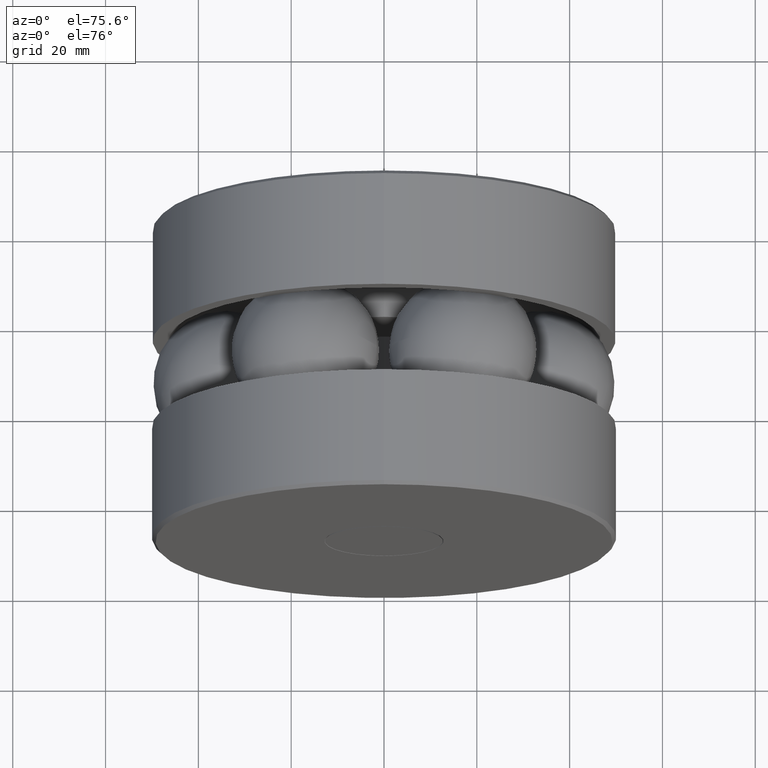
[diagram: clean part render]
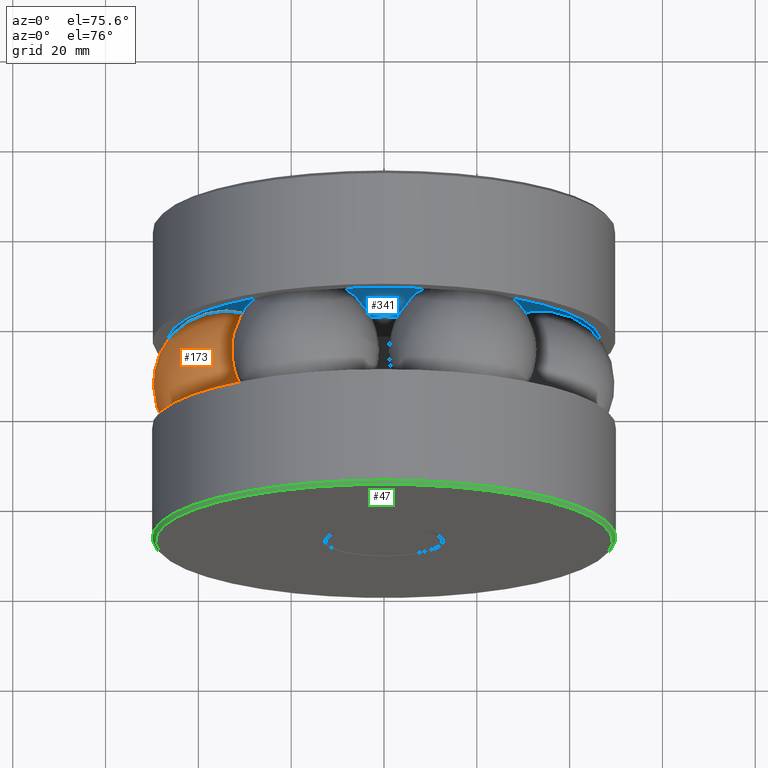
[diagram: same view with three faces highlighted in distinct colors, each labeled with its STEP entity id]
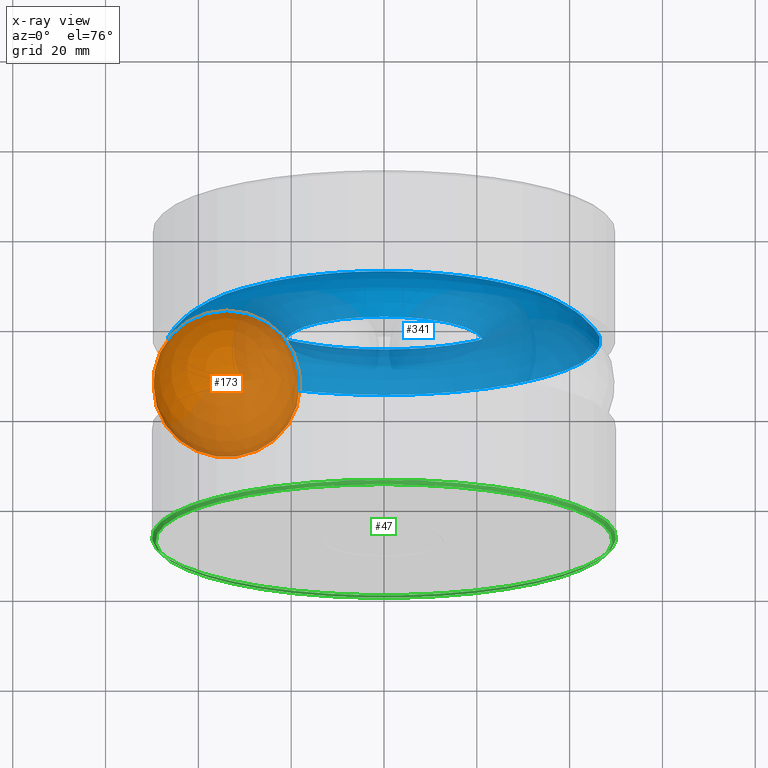
[diagram: x-ray of the same camera — body ghosted, the three highlighted faces saturated]
A machine part, auxiliary view with three faces highlighted in distinct colors.
The next image is the same camera in x-ray (body ghosted, the three faces saturated) — at least one of them is partly hidden behind the body in this view.
Their STEP definitions:

[orange] entity #173 — the highlighted spherical surface has radius 15.875 mm.
#74 = DIRECTION ( 'NONE',  ( 0.0000000000000000000, 0.0000000000000000000, -1.000000000000000000 ) ) ;
#173 = ADVANCED_FACE ( 'NONE', ( ), #284, .T. ) ;
#284 = SPHERICAL_SURFACE ( 'NONE', #380, 0.6250000000000000000 ) ;
#380 = AXIS2_PLACEMENT_3D ( 'NONE', #413, #74, #448 ) ;
#413 = CARTESIAN_POINT ( 'NONE',  ( -1.335000000000000200, 1.374999999999999300, 0.0000000000000000000 ) ) ;
#448 = DIRECTION ( 'NONE',  ( 1.000000000000000000, 0.0000000000000000000, 0.0000000000000000000 ) ) ;

[blue] entity #341 — the highlighted toroidal blend (fillet) surface has major radius 33.909 mm and minor (blend) radius 15.875 mm.
#33 = CARTESIAN_POINT ( 'NONE',  ( 0.0000000000000000000, 1.749999999999999600, 0.0000000000000000000 ) ) ;
#37 = AXIS2_PLACEMENT_3D ( 'NONE', #390, #48, #254 ) ;
#48 = DIRECTION ( 'NONE',  ( -0.0000000000000000000, 1.000000000000000000, -0.0000000000000000000 ) ) ;
#145 = CIRCLE ( 'NONE', #500, 0.8349999999999997400 ) ;
#156 = VERTEX_POINT ( 'NONE', #204 ) ;
#169 = EDGE_CURVE ( 'NONE', #497, #497, #439, .T. ) ;
#202 = DIRECTION ( 'NONE',  ( 0.0000000000000000000, 0.0000000000000000000, 1.000000000000000000 ) ) ;
#204 = CARTESIAN_POINT ( 'NONE',  ( 0.0000000000000000000, 1.749999999999999600, 0.8349999999999997400 ) ) ;
#212 = FACE_OUTER_BOUND ( 'NONE', #239, .T. ) ;
#228 = EDGE_CURVE ( 'NONE', #156, #156, #145, .T. ) ;
#239 = EDGE_LOOP ( 'NONE', ( #502 ) ) ;
#254 = DIRECTION ( 'NONE',  ( 0.0000000000000000000, 0.0000000000000000000, 1.000000000000000000 ) ) ;
#323 = AXIS2_PLACEMENT_3D ( 'NONE', #33, #544, #498 ) ;
#327 = EDGE_LOOP ( 'NONE', ( #531 ) ) ;
#341 = ADVANCED_FACE ( 'NONE', ( #212, #423 ), #451, .F. ) ;
#390 = CARTESIAN_POINT ( 'NONE',  ( 0.0000000000000000000, 1.374999999999999300, 0.0000000000000000000 ) ) ;
#392 = CARTESIAN_POINT ( 'NONE',  ( 0.0000000000000000000, 1.749999999999999600, 1.835000000000000400 ) ) ;
#423 = FACE_OUTER_BOUND ( 'NONE', #327, .T. ) ;
#439 = CIRCLE ( 'NONE', #323, 1.835000000000000400 ) ;
#446 = DIRECTION ( 'NONE',  ( -0.0000000000000000000, 1.000000000000000000, -0.0000000000000000000 ) ) ;
#451 = TOROIDAL_SURFACE ( 'NONE', #37, 1.335000000000000200, 0.6250000000000004400 ) ;
#492 = CARTESIAN_POINT ( 'NONE',  ( 0.0000000000000000000, 1.749999999999999600, 0.0000000000000000000 ) ) ;
#497 = VERTEX_POINT ( 'NONE', #392 ) ;
#498 = DIRECTION ( 'NONE',  ( 0.0000000000000000000, 0.0000000000000000000, 1.000000000000000000 ) ) ;
#500 = AXIS2_PLACEMENT_3D ( 'NONE', #492, #446, #202 ) ;
#502 = ORIENTED_EDGE ( 'NONE', *, *, #228, .T. ) ;
#531 = ORIENTED_EDGE ( 'NONE', *, *, #169, .F. ) ;
#544 = DIRECTION ( 'NONE',  ( -0.0000000000000000000, 1.000000000000000000, -0.0000000000000000000 ) ) ;

[green] entity #47 — the highlighted conical surface has half-angle 45 deg.
#47 = ADVANCED_FACE ( 'NONE', ( #147, #485 ), #129, .T. ) ;
#61 = VERTEX_POINT ( 'NONE', #272 ) ;
#82 = EDGE_LOOP ( 'NONE', ( #206 ) ) ;
#94 = CARTESIAN_POINT ( 'NONE',  ( 0.0000000000000000000, 0.03000000000000008900, 0.0000000000000000000 ) ) ;
#115 = DIRECTION ( 'NONE',  ( 0.0000000000000000000, 0.0000000000000000000, 1.000000000000000000 ) ) ;
#129 = CONICAL_SURFACE ( 'NONE', #548, 1.968999999999999900, 0.7853981633974430600 ) ;
#143 = EDGE_CURVE ( 'NONE', #61, #61, #547, .T. ) ;
#147 = FACE_BOUND ( 'NONE', #417, .T. ) ;
#184 = CARTESIAN_POINT ( 'NONE',  ( 0.0000000000000000000, -1.772329221079896900E-016, 1.939000000000000100 ) ) ;
#188 = EDGE_CURVE ( 'NONE', #379, #379, #215, .T. ) ;
#195 = DIRECTION ( 'NONE',  ( -0.0000000000000000000, 1.000000000000000000, -0.0000000000000000000 ) ) ;
#206 = ORIENTED_EDGE ( 'NONE', *, *, #143, .F. ) ;
#215 = CIRCLE ( 'NONE', #411, 1.939000000000000100 ) ;
#240 = CARTESIAN_POINT ( 'NONE',  ( 0.0000000000000000000, -1.772329221079896900E-016, 0.0000000000000000000 ) ) ;
#271 = DIRECTION ( 'NONE',  ( 0.0000000000000000000, 0.0000000000000000000, 1.000000000000000000 ) ) ;
#272 = CARTESIAN_POINT ( 'NONE',  ( 0.0000000000000000000, 0.03000000000000008900, 1.968999999999999900 ) ) ;
#297 = AXIS2_PLACEMENT_3D ( 'NONE', #308, #370, #115 ) ;
#308 = CARTESIAN_POINT ( 'NONE',  ( 0.0000000000000000000, 0.03000000000000008900, 0.0000000000000000000 ) ) ;
#324 = DIRECTION ( 'NONE',  ( 0.0000000000000000000, 0.0000000000000000000, 1.000000000000000000 ) ) ;
#370 = DIRECTION ( 'NONE',  ( -0.0000000000000000000, 1.000000000000000000, -0.0000000000000000000 ) ) ;
#379 = VERTEX_POINT ( 'NONE', #184 ) ;
#391 = DIRECTION ( 'NONE',  ( -0.0000000000000000000, 1.000000000000000000, -0.0000000000000000000 ) ) ;
#411 = AXIS2_PLACEMENT_3D ( 'NONE', #240, #195, #324 ) ;
#417 = EDGE_LOOP ( 'NONE', ( #445 ) ) ;
#445 = ORIENTED_EDGE ( 'NONE', *, *, #188, .T. ) ;
#485 = FACE_OUTER_BOUND ( 'NONE', #82, .T. ) ;
#547 = CIRCLE ( 'NONE', #297, 1.968999999999999900 ) ;
#548 = AXIS2_PLACEMENT_3D ( 'NONE', #94, #391, #271 ) ;